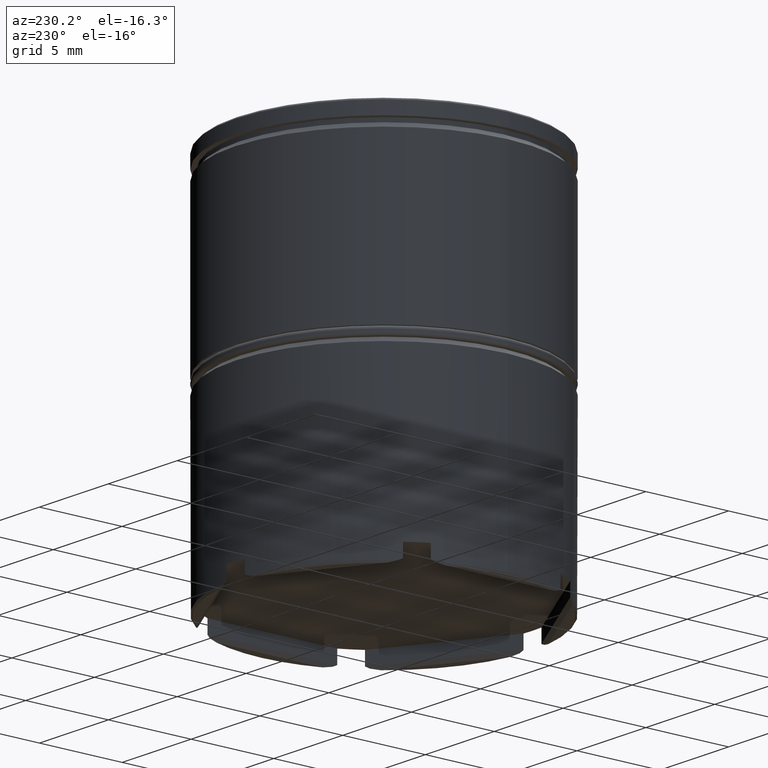
[diagram: clean part render]
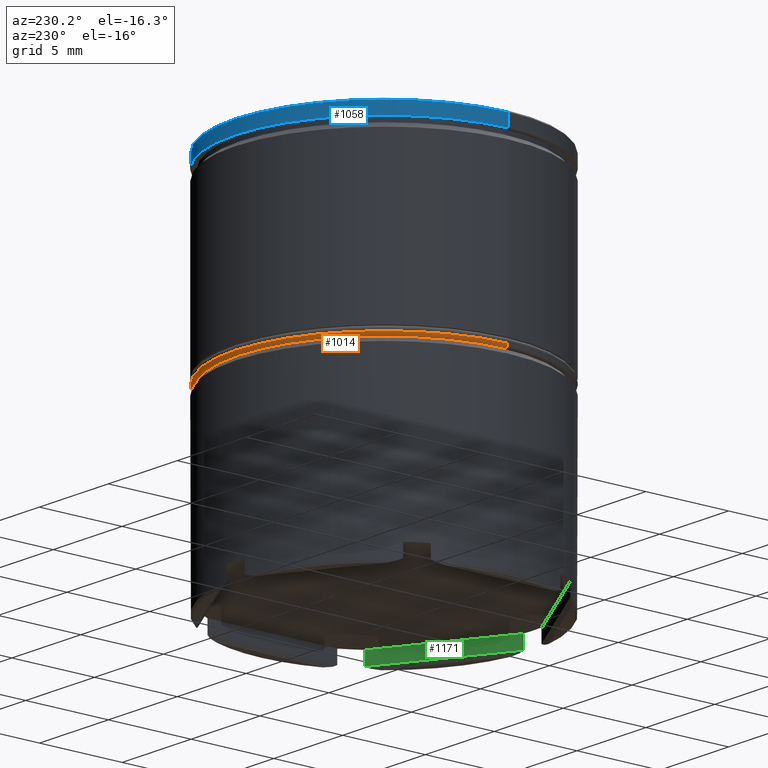
[diagram: same view with three faces highlighted in distinct colors, each labeled with its STEP entity id]
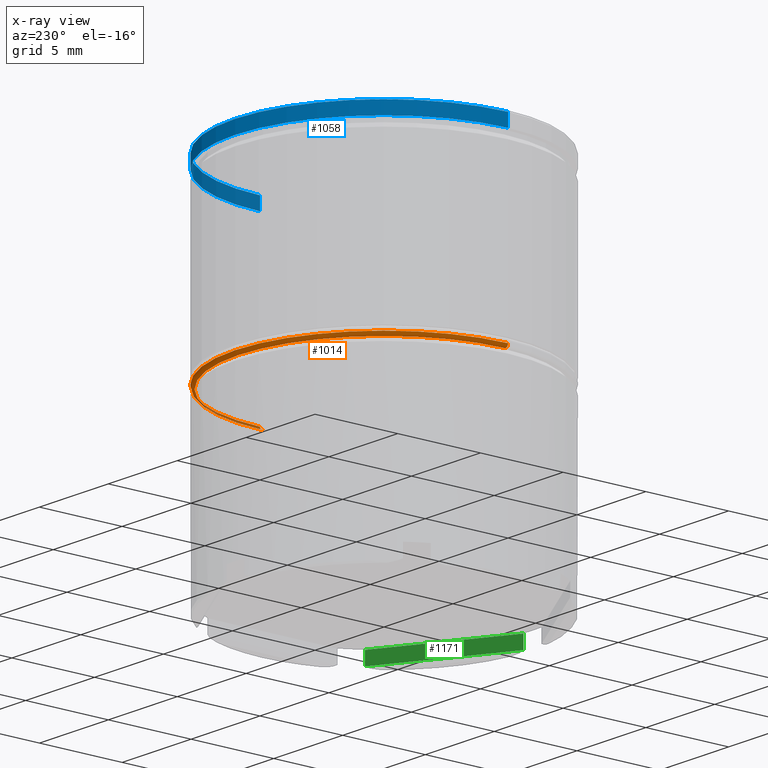
[diagram: x-ray of the same camera — body ghosted, the three highlighted faces saturated]
A machine part, auxiliary view with three faces highlighted in distinct colors.
The next image is the same camera in x-ray (body ghosted, the three faces saturated) — at least one of them is partly hidden behind the body in this view.
Their STEP definitions:

[orange] entity #1014 — the highlighted toroidal blend (fillet) surface has major radius 8.8 mm and minor (blend) radius 0.2 mm.
#25 = EDGE_CURVE ( 'NONE', #534, #998, #1246, .T. ) ;
#26 = ORIENTED_EDGE ( 'NONE', *, *, #366, .F. ) ;
#50 = DIRECTION ( 'NONE',  ( 0.000000000000000000, 0.000000000000000000, -1.000000000000000000 ) ) ;
#58 = CARTESIAN_POINT ( 'NONE',  ( -8.799999999999998934, 1.089935651241144160E-15, -11.49999999999999822 ) ) ;
#99 = AXIS2_PLACEMENT_3D ( 'NONE', #795, #937, #1168 ) ;
#100 = CARTESIAN_POINT ( 'NONE',  ( -9.000000000000000000, 1.102182119232617517E-15, -11.29999999999999716 ) ) ;
#167 = AXIS2_PLACEMENT_3D ( 'NONE', #1216, #967, #1601 ) ;
#172 = ORIENTED_EDGE ( 'NONE', *, *, #25, .T. ) ;
#202 = VERTEX_POINT ( 'NONE', #671 ) ;
#244 = DIRECTION ( 'NONE',  ( 0.000000000000000000, 0.000000000000000000, 1.000000000000000000 ) ) ;
#294 = CARTESIAN_POINT ( 'NONE',  ( 8.799999999999998934, 0.000000000000000000, -11.29999999999999716 ) ) ;
#366 = EDGE_CURVE ( 'NONE', #202, #548, #1138, .T. ) ;
#484 = CIRCLE ( 'NONE', #1271, 9.000000000000000000 ) ;
#534 = VERTEX_POINT ( 'NONE', #58 ) ;
#545 = DIRECTION ( 'NONE',  ( 0.000000000000000000, -1.000000000000000000, 0.000000000000000000 ) ) ;
#548 = VERTEX_POINT ( 'NONE', #862 ) ;
#559 = EDGE_LOOP ( 'NONE', ( #1268, #172, #1596, #26 ) ) ;
#582 = EDGE_CURVE ( 'NONE', #548, #998, #484, .T. ) ;
#663 = CARTESIAN_POINT ( 'NONE',  ( 0.000000000000000000, 0.000000000000000000, -11.49999999999999822 ) ) ;
#671 = CARTESIAN_POINT ( 'NONE',  ( 8.799999999999998934, 0.000000000000000000, -11.49999999999999822 ) ) ;
#718 = FACE_OUTER_BOUND ( 'NONE', #559, .T. ) ;
#738 = CARTESIAN_POINT ( 'NONE',  ( 0.000000000000000000, 0.000000000000000000, -11.29999999999999716 ) ) ;
#795 = CARTESIAN_POINT ( 'NONE',  ( -8.799999999999998934, 1.077689183249670605E-15, -11.29999999999999716 ) ) ;
#799 = CIRCLE ( 'NONE', #1439, 8.799999999999998934 ) ;
#862 = CARTESIAN_POINT ( 'NONE',  ( 9.000000000000000000, 0.000000000000000000, -11.29999999999999716 ) ) ;
#937 = DIRECTION ( 'NONE',  ( 1.224646799147353207E-16, 1.000000000000000000, -0.000000000000000000 ) ) ;
#967 = DIRECTION ( 'NONE',  ( 0.000000000000000000, 0.000000000000000000, 1.000000000000000000 ) ) ;
#998 = VERTEX_POINT ( 'NONE', #100 ) ;
#1014 = ADVANCED_FACE ( 'NONE', ( #718 ), #1158, .T. ) ;
#1029 = DIRECTION ( 'NONE',  ( -0.000000000000000000, -0.000000000000000000, -1.000000000000000000 ) ) ;
#1138 = CIRCLE ( 'NONE', #1626, 0.2000000000000005107 ) ;
#1158 = TOROIDAL_SURFACE ( 'NONE', #167, 8.799999999999998934, 0.2000000000000000111 ) ;
#1168 = DIRECTION ( 'NONE',  ( -1.000000000000000000, 1.224646799147353207E-16, 0.000000000000000000 ) ) ;
#1216 = CARTESIAN_POINT ( 'NONE',  ( 0.000000000000000000, 0.000000000000000000, -11.29999999999999716 ) ) ;
#1239 = EDGE_CURVE ( 'NONE', #534, #202, #799, .T. ) ;
#1246 = CIRCLE ( 'NONE', #99, 0.2000000000000005107 ) ;
#1268 = ORIENTED_EDGE ( 'NONE', *, *, #1239, .F. ) ;
#1271 = AXIS2_PLACEMENT_3D ( 'NONE', #738, #244, #1396 ) ;
#1310 = DIRECTION ( 'NONE',  ( 1.000000000000000000, 0.000000000000000000, 0.000000000000000000 ) ) ;
#1396 = DIRECTION ( 'NONE',  ( 1.000000000000000000, 0.000000000000000000, 0.000000000000000000 ) ) ;
#1439 = AXIS2_PLACEMENT_3D ( 'NONE', #663, #1029, #1310 ) ;
#1596 = ORIENTED_EDGE ( 'NONE', *, *, #582, .F. ) ;
#1601 = DIRECTION ( 'NONE',  ( 1.000000000000000000, 0.000000000000000000, 0.000000000000000000 ) ) ;
#1626 = AXIS2_PLACEMENT_3D ( 'NONE', #294, #545, #50 ) ;

[blue] entity #1058 — the highlighted cylindrical surface (partial cylindrical patch) has radius 9 mm, axis along (-0, -0, 1).
#1 = DIRECTION ( 'NONE',  ( 1.000000000000000000, 0.000000000000000000, 0.000000000000000000 ) ) ;
#33 = VERTEX_POINT ( 'NONE', #436 ) ;
#70 = VECTOR ( 'NONE', #539, 1000.000000000000000 ) ;
#110 = DIRECTION ( 'NONE',  ( -0.000000000000000000, -0.000000000000000000, 1.000000000000000000 ) ) ;
#123 = AXIS2_PLACEMENT_3D ( 'NONE', #730, #1091, #1461 ) ;
#161 = ORIENTED_EDGE ( 'NONE', *, *, #1143, .T. ) ;
#209 = LINE ( 'NONE', #831, #70 ) ;
#309 = EDGE_LOOP ( 'NONE', ( #885, #1593, #161, #518 ) ) ;
#353 = CYLINDRICAL_SURFACE ( 'NONE', #773, 9.000000000000000000 ) ;
#436 = CARTESIAN_POINT ( 'NONE',  ( -9.000000000000000000, 1.102182119232617714E-15, -0.8749999999999998890 ) ) ;
#491 = VERTEX_POINT ( 'NONE', #703 ) ;
#507 = VECTOR ( 'NONE', #1476, 1000.000000000000000 ) ;
#518 = ORIENTED_EDGE ( 'NONE', *, *, #778, .F. ) ;
#539 = DIRECTION ( 'NONE',  ( -0.000000000000000000, -0.000000000000000000, 1.000000000000000000 ) ) ;
#576 = VERTEX_POINT ( 'NONE', #866 ) ;
#598 = DIRECTION ( 'NONE',  ( 1.000000000000000000, 0.000000000000000000, 0.000000000000000000 ) ) ;
#652 = VERTEX_POINT ( 'NONE', #870 ) ;
#703 = CARTESIAN_POINT ( 'NONE',  ( 9.000000000000000000, 0.000000000000000000, -0.8749999999999998890 ) ) ;
#714 = LINE ( 'NONE', #1218, #507 ) ;
#730 = CARTESIAN_POINT ( 'NONE',  ( 0.000000000000000000, 0.000000000000000000, -0.8749999999999998890 ) ) ;
#750 = CIRCLE ( 'NONE', #879, 9.000000000000000000 ) ;
#773 = AXIS2_PLACEMENT_3D ( 'NONE', #1488, #110, #598 ) ;
#778 = EDGE_CURVE ( 'NONE', #491, #576, #209, .T. ) ;
#831 = CARTESIAN_POINT ( 'NONE',  ( 9.000000000000000000, 0.000000000000000000, 0.000000000000000000 ) ) ;
#832 = CIRCLE ( 'NONE', #123, 9.000000000000000000 ) ;
#866 = CARTESIAN_POINT ( 'NONE',  ( 9.000000000000000000, 0.000000000000000000, -0.09999999999999419076 ) ) ;
#870 = CARTESIAN_POINT ( 'NONE',  ( -9.000000000000000000, 1.102182119232617714E-15, -0.09999999999999419076 ) ) ;
#879 = AXIS2_PLACEMENT_3D ( 'NONE', #1139, #1381, #1 ) ;
#885 = ORIENTED_EDGE ( 'NONE', *, *, #1001, .T. ) ;
#907 = EDGE_CURVE ( 'NONE', #33, #652, #714, .T. ) ;
#1001 = EDGE_CURVE ( 'NONE', #491, #33, #832, .T. ) ;
#1058 = ADVANCED_FACE ( 'NONE', ( #1355 ), #353, .T. ) ;
#1091 = DIRECTION ( 'NONE',  ( -0.000000000000000000, -0.000000000000000000, 1.000000000000000000 ) ) ;
#1139 = CARTESIAN_POINT ( 'NONE',  ( 0.000000000000000000, 0.000000000000000000, -0.09999999999999419076 ) ) ;
#1143 = EDGE_CURVE ( 'NONE', #652, #576, #750, .T. ) ;
#1218 = CARTESIAN_POINT ( 'NONE',  ( -9.000000000000000000, 1.102182119232617714E-15, 0.000000000000000000 ) ) ;
#1355 = FACE_OUTER_BOUND ( 'NONE', #309, .T. ) ;
#1381 = DIRECTION ( 'NONE',  ( 0.000000000000000000, 0.000000000000000000, -1.000000000000000000 ) ) ;
#1461 = DIRECTION ( 'NONE',  ( 1.000000000000000000, 0.000000000000000000, 0.000000000000000000 ) ) ;
#1476 = DIRECTION ( 'NONE',  ( -0.000000000000000000, -0.000000000000000000, 1.000000000000000000 ) ) ;
#1488 = CARTESIAN_POINT ( 'NONE',  ( 0.000000000000000000, 0.000000000000000000, 0.000000000000000000 ) ) ;
#1593 = ORIENTED_EDGE ( 'NONE', *, *, #907, .T. ) ;

[green] entity #1171 — the highlighted planar face has unit normal (0.5, -0.866, 0).
#3 = EDGE_CURVE ( 'NONE', #298, #629, #1303, .T. ) ;
#5 = CARTESIAN_POINT ( 'NONE',  ( 7.447425495871829781, -5.053301246060659224, 0.000000000000000000 ) ) ;
#32 = EDGE_LOOP ( 'NONE', ( #547, #751, #437, #1053 ) ) ;
#103 = VECTOR ( 'NONE', #175, 1000.000000000000000 ) ;
#106 = LINE ( 'NONE', #593, #1364 ) ;
#175 = DIRECTION ( 'NONE',  ( -0.000000000000000000, -0.000000000000000000, 1.000000000000000000 ) ) ;
#179 = DIRECTION ( 'NONE',  ( -0.8660254037844387076, -0.4999999999999998335, 0.000000000000000000 ) ) ;
#180 = VERTEX_POINT ( 'NONE', #533 ) ;
#223 = CARTESIAN_POINT ( 'NONE',  ( 0.6525745041281688641, -8.976310295247257542, -21.50000000000000000 ) ) ;
#257 = PLANE ( 'NONE',  #988 ) ;
#298 = VERTEX_POINT ( 'NONE', #469 ) ;
#350 = EDGE_CURVE ( 'NONE', #180, #298, #752, .T. ) ;
#437 = ORIENTED_EDGE ( 'NONE', *, *, #1255, .T. ) ;
#469 = CARTESIAN_POINT ( 'NONE',  ( 7.447425495871829781, -5.053301246060659224, -22.30000000000000426 ) ) ;
#533 = CARTESIAN_POINT ( 'NONE',  ( 7.447425495871832446, -5.053301246060657448, -21.50000000000000000 ) ) ;
#547 = ORIENTED_EDGE ( 'NONE', *, *, #350, .T. ) ;
#593 = CARTESIAN_POINT ( 'NONE',  ( 8.100000000000001421, -4.676537180435970775, -21.50000000000000000 ) ) ;
#605 = DIRECTION ( 'NONE',  ( 0.4999999999999998335, -0.8660254037844387076, 0.000000000000000000 ) ) ;
#629 = VERTEX_POINT ( 'NONE', #997 ) ;
#676 = CARTESIAN_POINT ( 'NONE',  ( 0.8562561154657374329, -8.858714662112531002, -22.30000000000000426 ) ) ;
#751 = ORIENTED_EDGE ( 'NONE', *, *, #3, .T. ) ;
#752 = LINE ( 'NONE', #5, #1298 ) ;
#759 = CARTESIAN_POINT ( 'NONE',  ( 8.100000000000001421, -4.676537180435970775, -21.50000000000000000 ) ) ;
#871 = EDGE_CURVE ( 'NONE', #180, #1043, #106, .T. ) ;
#988 = AXIS2_PLACEMENT_3D ( 'NONE', #759, #605, #1131 ) ;
#997 = CARTESIAN_POINT ( 'NONE',  ( 0.6525745041281718617, -8.976310295247255766, -22.30000000000000426 ) ) ;
#1043 = VERTEX_POINT ( 'NONE', #223 ) ;
#1053 = ORIENTED_EDGE ( 'NONE', *, *, #871, .F. ) ;
#1105 = DIRECTION ( 'NONE',  ( -0.8660254037844387076, -0.4999999999999998890, 0.000000000000000000 ) ) ;
#1131 = DIRECTION ( 'NONE',  ( 0.8660254037844387076, 0.4999999999999998335, 0.000000000000000000 ) ) ;
#1171 = ADVANCED_FACE ( 'NONE', ( #1503 ), #257, .F. ) ;
#1255 = EDGE_CURVE ( 'NONE', #629, #1043, #1568, .T. ) ;
#1298 = VECTOR ( 'NONE', #1527, 1000.000000000000000 ) ;
#1303 = LINE ( 'NONE', #676, #1517 ) ;
#1364 = VECTOR ( 'NONE', #1105, 1000.000000000000114 ) ;
#1503 = FACE_OUTER_BOUND ( 'NONE', #32, .T. ) ;
#1517 = VECTOR ( 'NONE', #179, 1000.000000000000114 ) ;
#1527 = DIRECTION ( 'NONE',  ( 0.000000000000000000, 0.000000000000000000, -1.000000000000000000 ) ) ;
#1542 = CARTESIAN_POINT ( 'NONE',  ( 0.6525745041281718617, -8.976310295247255766, 0.000000000000000000 ) ) ;
#1568 = LINE ( 'NONE', #1542, #103 ) ;